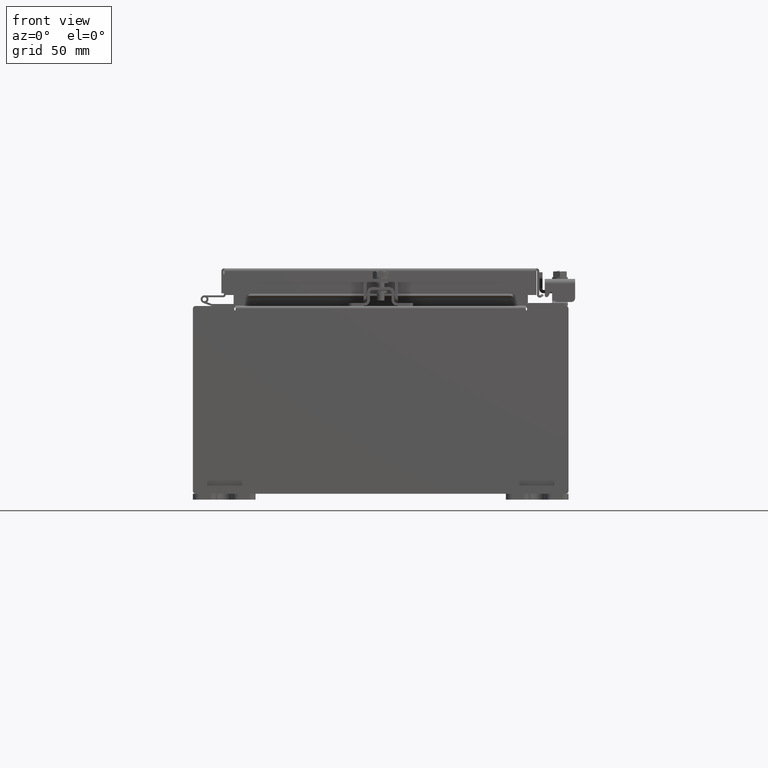
[diagram: clean part render]
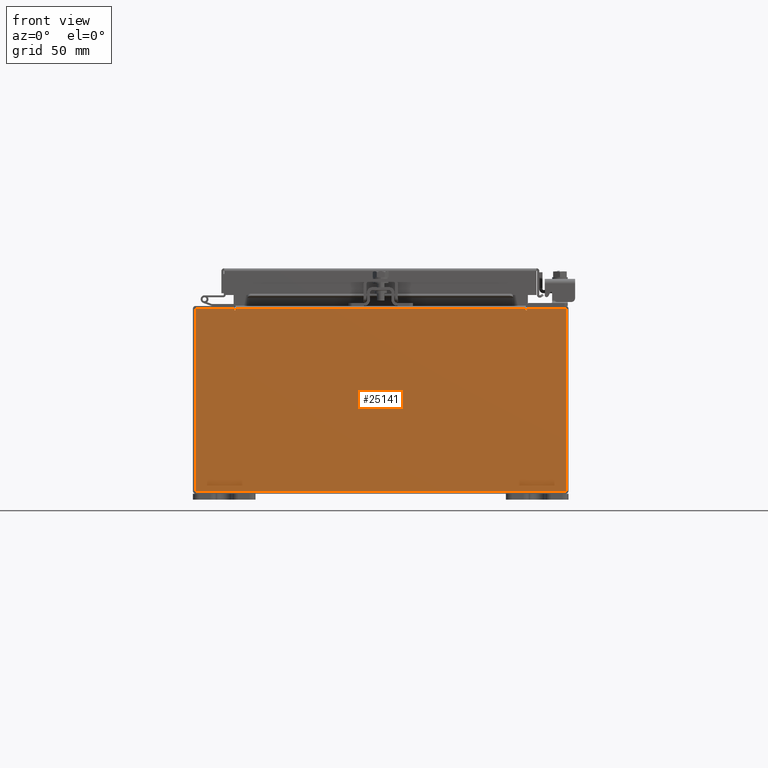
[diagram: same view with one face highlighted and labeled with its STEP entity id]
A machine part, front view. The second image highlights one B-rep face of the part: STEP entity #25141.
In plain terms, the highlighted planar face has unit normal (-0, 1, -0).
Its self-contained STEP definition (entity closure, byte-faithful):
#297 = VERTEX_POINT ( 'NONE', #24348 ) ;
#336 = ORIENTED_EDGE ( 'NONE', *, *, #15885, .T. ) ;
#452 = DIRECTION ( 'NONE',  ( 0.0000000000000000000, 0.0000000000000000000, -1.000000000000000000 ) ) ;
#709 = DIRECTION ( 'NONE',  ( 1.000000000000000000, 0.0000000000000000000, 0.0000000000000000000 ) ) ;
#1085 = AXIS2_PLACEMENT_3D ( 'NONE', #22626, #5050, #452 ) ;
#1524 = ORIENTED_EDGE ( 'NONE', *, *, #8517, .F. ) ;
#1622 = LINE ( 'NONE', #10953, #2586 ) ;
#1650 = EDGE_CURVE ( 'NONE', #17494, #297, #16545, .T. ) ;
#2299 = CARTESIAN_POINT ( 'NONE',  ( 4.655875000000001800, 0.0000000000000000000, 2.874949999999999700 ) ) ;
#2468 = VERTEX_POINT ( 'NONE', #20620 ) ;
#2586 = VECTOR ( 'NONE', #10574, 39.37007874015748100 ) ;
#2910 = VERTEX_POINT ( 'NONE', #15183 ) ;
#3104 = EDGE_LOOP ( 'NONE', ( #11131, #17448, #15353, #12606, #21387, #13309, #1524, #8250, #3201, #336, #11748, #10222 ) ) ;
#3201 = ORIENTED_EDGE ( 'NONE', *, *, #1650, .T. ) ;
#3246 = VERTEX_POINT ( 'NONE', #5881 ) ;
#3435 = LINE ( 'NONE', #22236, #18835 ) ;
#3450 = VECTOR ( 'NONE', #709, 39.37007874015748100 ) ;
#3587 = EDGE_CURVE ( 'NONE', #2910, #2468, #7813, .T. ) ;
#3956 = AXIS2_PLACEMENT_3D ( 'NONE', #15321, #7354, #21438 ) ;
#3981 = CARTESIAN_POINT ( 'NONE',  ( 5.925300000000001800, 0.0000000000000000000, 2.925300000000000000 ) ) ;
#4138 = CARTESIAN_POINT ( 'NONE',  ( -4.637199999999999100, -1.707404996040164500E-016, 2.912300000000000100 ) ) ;
#5050 = DIRECTION ( 'NONE',  ( -0.0000000000000000000, 1.000000000000000000, -0.0000000000000000000 ) ) ;
#5074 = DIRECTION ( 'NONE',  ( 1.000000000000000000, 0.0000000000000000000, 0.0000000000000000000 ) ) ;
#5512 = CARTESIAN_POINT ( 'NONE',  ( -5.925299999999999100, 0.0000000000000000000, 2.925300000000000000 ) ) ;
#5800 = VERTEX_POINT ( 'NONE', #4138 ) ;
#5881 = CARTESIAN_POINT ( 'NONE',  ( 4.637200000000001800, 0.0000000000000000000, 2.874949999999999700 ) ) ;
#6096 = CARTESIAN_POINT ( 'NONE',  ( -4.674549999999999100, 0.0000000000000000000, 2.925300000000000000 ) ) ;
#6162 = VECTOR ( 'NONE', #5074, 39.37007874015748100 ) ;
#7354 = DIRECTION ( 'NONE',  ( 0.0000000000000000000, -1.000000000000000000, 0.0000000000000000000 ) ) ;
#7813 = CIRCLE ( 'NONE', #1085, 0.01867500000000003900 ) ;
#8250 = ORIENTED_EDGE ( 'NONE', *, *, #17472, .T. ) ;
#8517 = EDGE_CURVE ( 'NONE', #19149, #22286, #1622, .T. ) ;
#8639 = DIRECTION ( 'NONE',  ( 0.0000000000000000000, 0.0000000000000000000, 1.000000000000000000 ) ) ;
#8759 = LINE ( 'NONE', #9629, #18811 ) ;
#9516 = VECTOR ( 'NONE', #19611, 39.37007874015748100 ) ;
#9559 = EDGE_CURVE ( 'NONE', #22286, #3246, #16051, .T. ) ;
#9629 = CARTESIAN_POINT ( 'NONE',  ( -5.925299999999999100, 0.0000000000000000000, -2.925300000000000000 ) ) ;
#9822 = VECTOR ( 'NONE', #21159, 39.37007874015748100 ) ;
#10098 = FACE_OUTER_BOUND ( 'NONE', #3104, .T. ) ;
#10144 = LINE ( 'NONE', #19435, #9516 ) ;
#10222 = ORIENTED_EDGE ( 'NONE', *, *, #22743, .T. ) ;
#10226 = CARTESIAN_POINT ( 'NONE',  ( -5.925299999999999100, 0.0000000000000000000, 2.925300000000000000 ) ) ;
#10466 = LINE ( 'NONE', #10226, #9822 ) ;
#10574 = DIRECTION ( 'NONE',  ( -1.085143195100001200E-014, 0.0000000000000000000, -1.000000000000000000 ) ) ;
#10756 = VERTEX_POINT ( 'NONE', #25763 ) ;
#10953 = CARTESIAN_POINT ( 'NONE',  ( 4.674549999999970700, -0.0000000000000000000, -5.072556122654679100E-014 ) ) ;
#11131 = ORIENTED_EDGE ( 'NONE', *, *, #14227, .F. ) ;
#11324 = LINE ( 'NONE', #20228, #20823 ) ;
#11458 = EDGE_CURVE ( 'NONE', #5800, #24202, #24263, .T. ) ;
#11465 = DIRECTION ( 'NONE',  ( 0.0000000000000000000, 0.0000000000000000000, 1.000000000000000000 ) ) ;
#11742 = CARTESIAN_POINT ( 'NONE',  ( 4.637200000000001800, 0.0000000000000000000, 2.912300000000000100 ) ) ;
#11748 = ORIENTED_EDGE ( 'NONE', *, *, #13024, .T. ) ;
#12606 = ORIENTED_EDGE ( 'NONE', *, *, #11458, .T. ) ;
#13024 = EDGE_CURVE ( 'NONE', #10756, #19207, #10466, .T. ) ;
#13060 = CARTESIAN_POINT ( 'NONE',  ( 4.674550000000001800, 0.0000000000000000000, 2.874949999999999700 ) ) ;
#13309 = ORIENTED_EDGE ( 'NONE', *, *, #9559, .F. ) ;
#13427 = CARTESIAN_POINT ( 'NONE',  ( 5.925300000000001800, 0.0000000000000000000, 2.925300000000000000 ) ) ;
#14221 = VECTOR ( 'NONE', #20485, 39.37007874015748100 ) ;
#14227 = EDGE_CURVE ( 'NONE', #2468, #16138, #11324, .T. ) ;
#14436 = CARTESIAN_POINT ( 'NONE',  ( -5.925299999999999100, 0.0000000000000000000, 2.925300000000000000 ) ) ;
#15183 = CARTESIAN_POINT ( 'NONE',  ( -4.637199999999999100, -0.0000000000000000000, 2.874949999999999700 ) ) ;
#15321 = CARTESIAN_POINT ( 'NONE',  ( 0.0000000000000000000, 0.0000000000000000000, 0.0000000000000000000 ) ) ;
#15353 = ORIENTED_EDGE ( 'NONE', *, *, #19584, .F. ) ;
#15461 = EDGE_CURVE ( 'NONE', #3246, #24202, #3435, .T. ) ;
#15577 = VECTOR ( 'NONE', #25670, 39.37007874015748100 ) ;
#15885 = EDGE_CURVE ( 'NONE', #297, #10756, #8759, .T. ) ;
#16051 = CIRCLE ( 'NONE', #22349, 0.01867500000000003900 ) ;
#16138 = VERTEX_POINT ( 'NONE', #6096 ) ;
#16545 = LINE ( 'NONE', #13427, #15577 ) ;
#17448 = ORIENTED_EDGE ( 'NONE', *, *, #3587, .F. ) ;
#17460 = LINE ( 'NONE', #22327, #6162 ) ;
#17472 = EDGE_CURVE ( 'NONE', #19149, #17494, #17460, .T. ) ;
#17494 = VERTEX_POINT ( 'NONE', #3981 ) ;
#18811 = VECTOR ( 'NONE', #22669, 39.37007874015748100 ) ;
#18835 = VECTOR ( 'NONE', #11465, 39.37007874015748100 ) ;
#19001 = DIRECTION ( 'NONE',  ( -0.0000000000000000000, 1.000000000000000000, -0.0000000000000000000 ) ) ;
#19149 = VERTEX_POINT ( 'NONE', #19304 ) ;
#19207 = VERTEX_POINT ( 'NONE', #5512 ) ;
#19304 = CARTESIAN_POINT ( 'NONE',  ( 4.674550000000000900, 0.0000000000000000000, 2.925300000000000000 ) ) ;
#19404 = PLANE ( 'NONE',  #3956 ) ;
#19435 = CARTESIAN_POINT ( 'NONE',  ( -4.637199999999999100, -0.0000000000000000000, 0.0000000000000000000 ) ) ;
#19584 = EDGE_CURVE ( 'NONE', #5800, #2910, #10144, .T. ) ;
#19611 = DIRECTION ( 'NONE',  ( 0.0000000000000000000, 0.0000000000000000000, -1.000000000000000000 ) ) ;
#20228 = CARTESIAN_POINT ( 'NONE',  ( -4.674549999999999100, -0.0000000000000000000, 0.0000000000000000000 ) ) ;
#20485 = DIRECTION ( 'NONE',  ( 1.000000000000000000, 0.0000000000000000000, 0.0000000000000000000 ) ) ;
#20620 = CARTESIAN_POINT ( 'NONE',  ( -4.674549999999999100, 0.0000000000000000000, 2.874949999999999700 ) ) ;
#20687 = CARTESIAN_POINT ( 'NONE',  ( -4.637199999999999100, -1.707404996040164500E-016, 2.912300000000000100 ) ) ;
#20823 = VECTOR ( 'NONE', #8639, 39.37007874015748100 ) ;
#21159 = DIRECTION ( 'NONE',  ( -0.0000000000000000000, -0.0000000000000000000, 1.000000000000000000 ) ) ;
#21387 = ORIENTED_EDGE ( 'NONE', *, *, #15461, .F. ) ;
#21438 = DIRECTION ( 'NONE',  ( 0.0000000000000000000, -0.0000000000000000000, -1.000000000000000000 ) ) ;
#22236 = CARTESIAN_POINT ( 'NONE',  ( 4.637200000000001800, 0.0000000000000000000, 0.0000000000000000000 ) ) ;
#22286 = VERTEX_POINT ( 'NONE', #13060 ) ;
#22327 = CARTESIAN_POINT ( 'NONE',  ( -5.925299999999999100, 0.0000000000000000000, 2.925300000000000000 ) ) ;
#22349 = AXIS2_PLACEMENT_3D ( 'NONE', #2299, #19001, #25784 ) ;
#22626 = CARTESIAN_POINT ( 'NONE',  ( -4.655874999999999100, 0.0000000000000000000, 2.874949999999999700 ) ) ;
#22669 = DIRECTION ( 'NONE',  ( -1.000000000000000000, -0.0000000000000000000, -0.0000000000000000000 ) ) ;
#22743 = EDGE_CURVE ( 'NONE', #19207, #16138, #25023, .T. ) ;
#24202 = VERTEX_POINT ( 'NONE', #11742 ) ;
#24263 = LINE ( 'NONE', #20687, #3450 ) ;
#24348 = CARTESIAN_POINT ( 'NONE',  ( 5.925300000000001800, 0.0000000000000000000, -2.925300000000000000 ) ) ;
#25023 = LINE ( 'NONE', #14436, #14221 ) ;
#25141 = ADVANCED_FACE ( 'NONE', ( #10098 ), #19404, .F. ) ;
#25670 = DIRECTION ( 'NONE',  ( 0.0000000000000000000, 0.0000000000000000000, -1.000000000000000000 ) ) ;
#25763 = CARTESIAN_POINT ( 'NONE',  ( -5.925299999999999100, 0.0000000000000000000, -2.925300000000000000 ) ) ;
#25784 = DIRECTION ( 'NONE',  ( 0.0000000000000000000, 0.0000000000000000000, -1.000000000000000000 ) ) ;